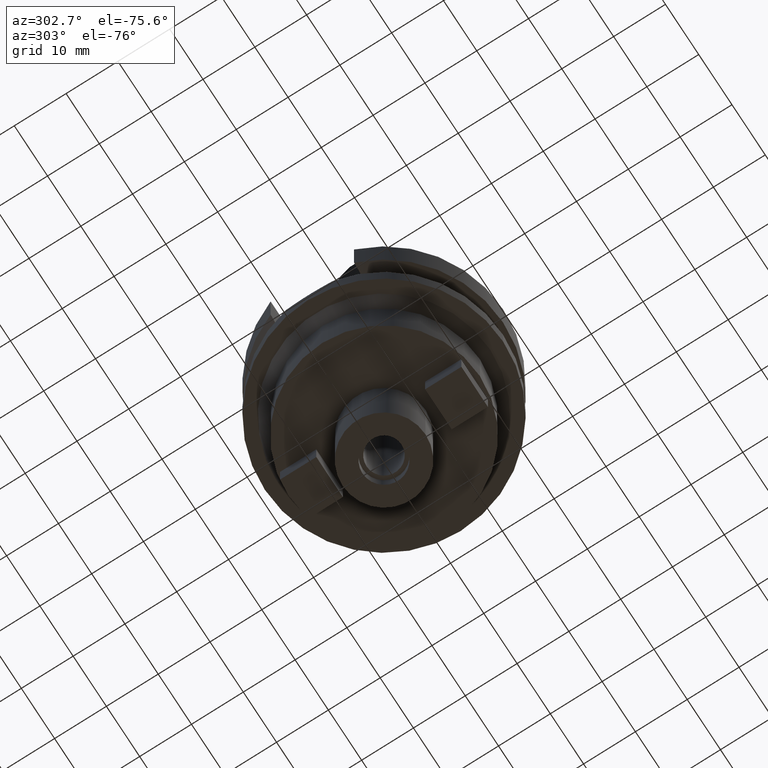
[diagram: clean part render]
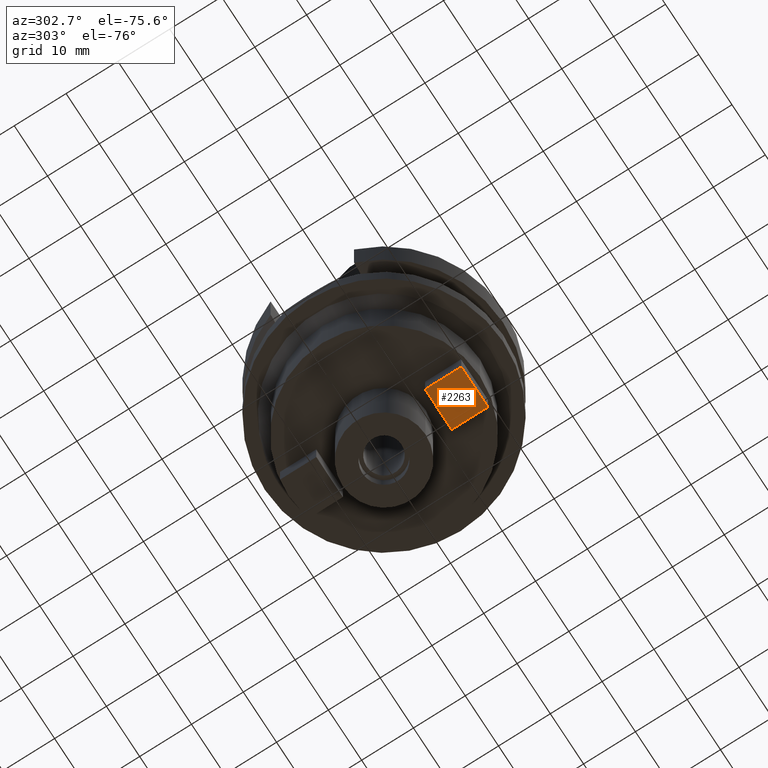
[diagram: same view with one face highlighted and labeled with its STEP entity id]
A machine part, auxiliary view. The second image highlights one B-rep face of the part: STEP entity #2263.
In plain terms, the highlighted planar face has unit normal (0, 0, -1).
Its self-contained STEP definition (entity closure, byte-faithful):
#1097=DIRECTION('',(0.E0,1.E0,0.E0));
#1098=VECTOR('',#1097,7.E0);
#1099=CARTESIAN_POINT('',(-4.E0,-1.75E1,-4.E1));
#1100=LINE('',#1099,#1098);
#1125=DIRECTION('',(-1.E0,0.E0,0.E0));
#1126=VECTOR('',#1125,8.E0);
#1127=CARTESIAN_POINT('',(4.E0,-1.75E1,-4.E1));
#1128=LINE('',#1127,#1126);
#1139=DIRECTION('',(0.E0,1.E0,0.E0));
#1140=VECTOR('',#1139,7.E0);
#1141=CARTESIAN_POINT('',(4.E0,-1.75E1,-4.E1));
#1142=LINE('',#1141,#1140);
#1146=DIRECTION('',(-1.E0,0.E0,0.E0));
#1147=VECTOR('',#1146,8.E0);
#1148=CARTESIAN_POINT('',(4.E0,-1.05E1,-4.E1));
#1149=LINE('',#1148,#1147);
#1345=CARTESIAN_POINT('',(-4.E0,-1.75E1,-4.E1));
#1346=VERTEX_POINT('',#1345);
#1347=CARTESIAN_POINT('',(-4.E0,-1.05E1,-4.E1));
#1348=VERTEX_POINT('',#1347);
#1349=CARTESIAN_POINT('',(4.E0,-1.75E1,-4.E1));
#1350=VERTEX_POINT('',#1349);
#1351=CARTESIAN_POINT('',(4.E0,-1.05E1,-4.E1));
#1352=VERTEX_POINT('',#1351);
#2252=CARTESIAN_POINT('',(-4.E0,-1.05E1,-4.E1));
#2253=DIRECTION('',(0.E0,0.E0,-1.E0));
#2254=DIRECTION('',(0.E0,-1.E0,0.E0));
#2255=AXIS2_PLACEMENT_3D('',#2252,#2253,#2254);
#2256=PLANE('',#2255);
#2257=ORIENTED_EDGE('',*,*,#2204,.F.);
#2258=ORIENTED_EDGE('',*,*,#2219,.F.);
#2259=ORIENTED_EDGE('',*,*,#2233,.T.);
#2260=ORIENTED_EDGE('',*,*,#2246,.T.);
#2261=EDGE_LOOP('',(#2257,#2258,#2259,#2260));
#2262=FACE_OUTER_BOUND('',#2261,.F.);
#2204=EDGE_CURVE('',#1346,#1348,#1100,.T.);
#2219=EDGE_CURVE('',#1350,#1346,#1128,.T.);
#2233=EDGE_CURVE('',#1350,#1352,#1142,.T.);
#2246=EDGE_CURVE('',#1352,#1348,#1149,.T.);
#2263=ADVANCED_FACE('',(#2262),#2256,.T.);